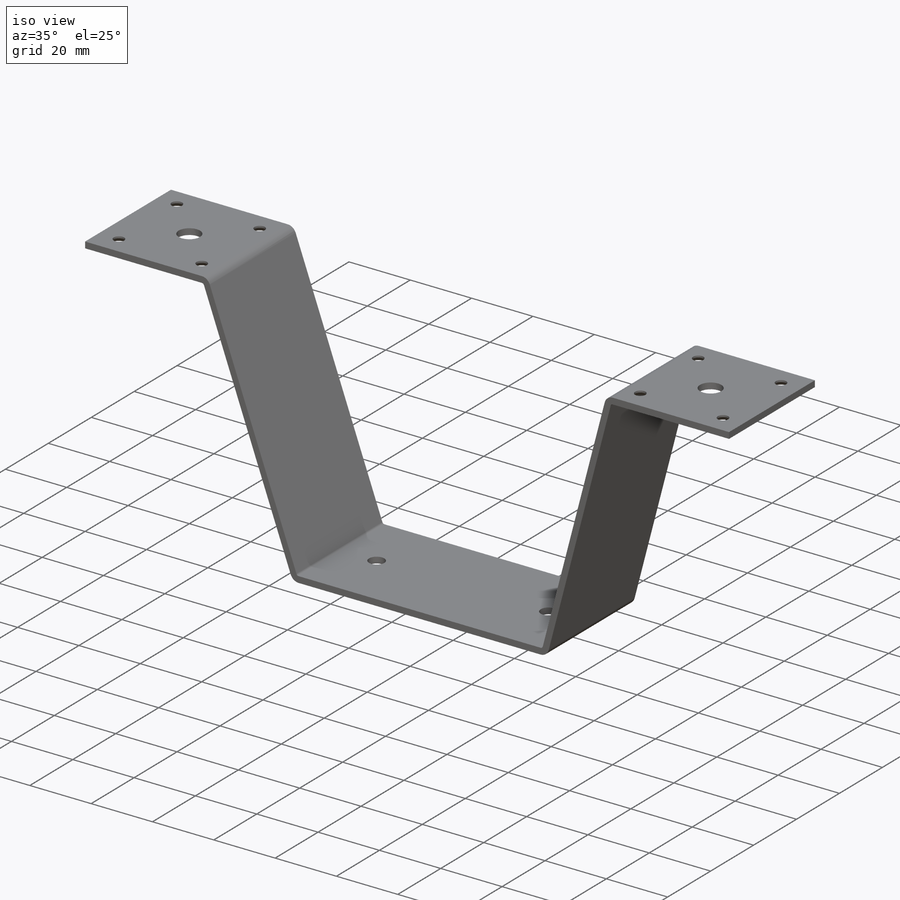
[diagram: iso view]
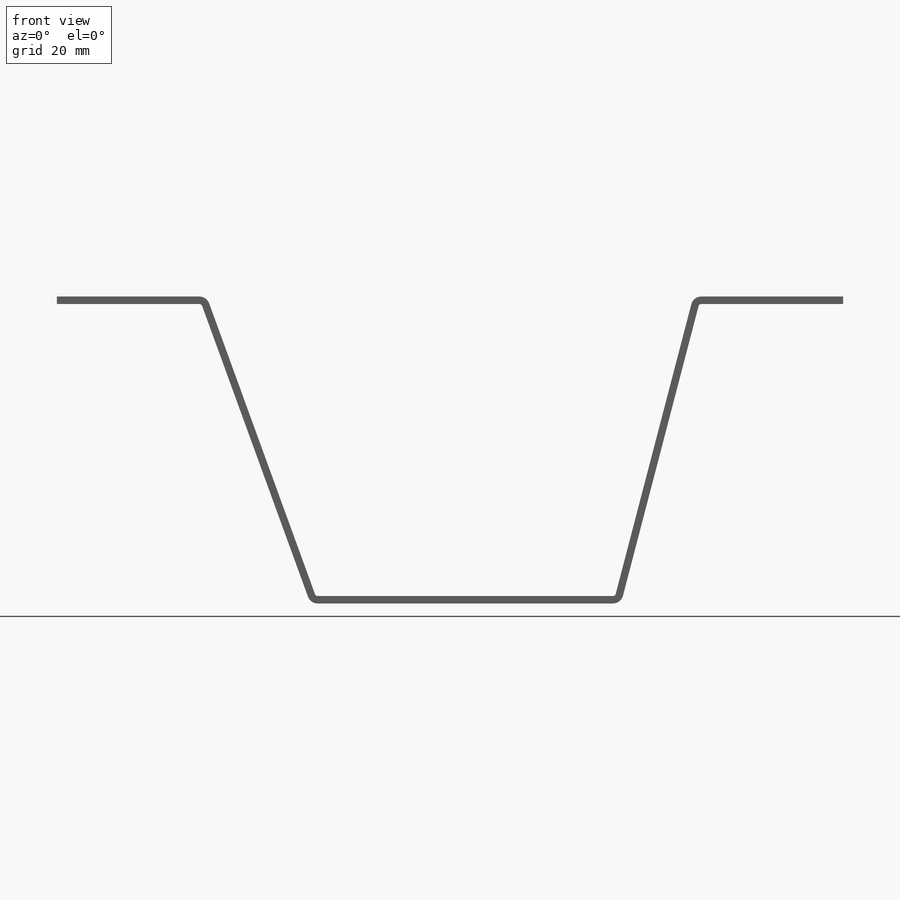
[diagram: front view]
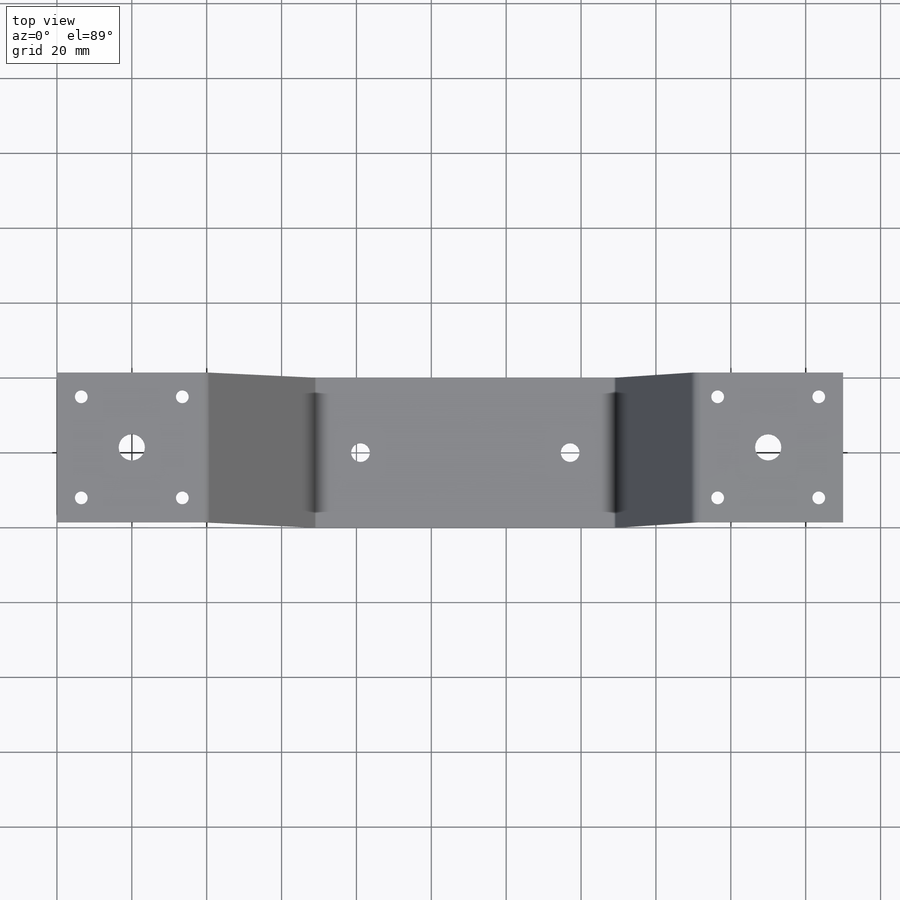
[diagram: top view]
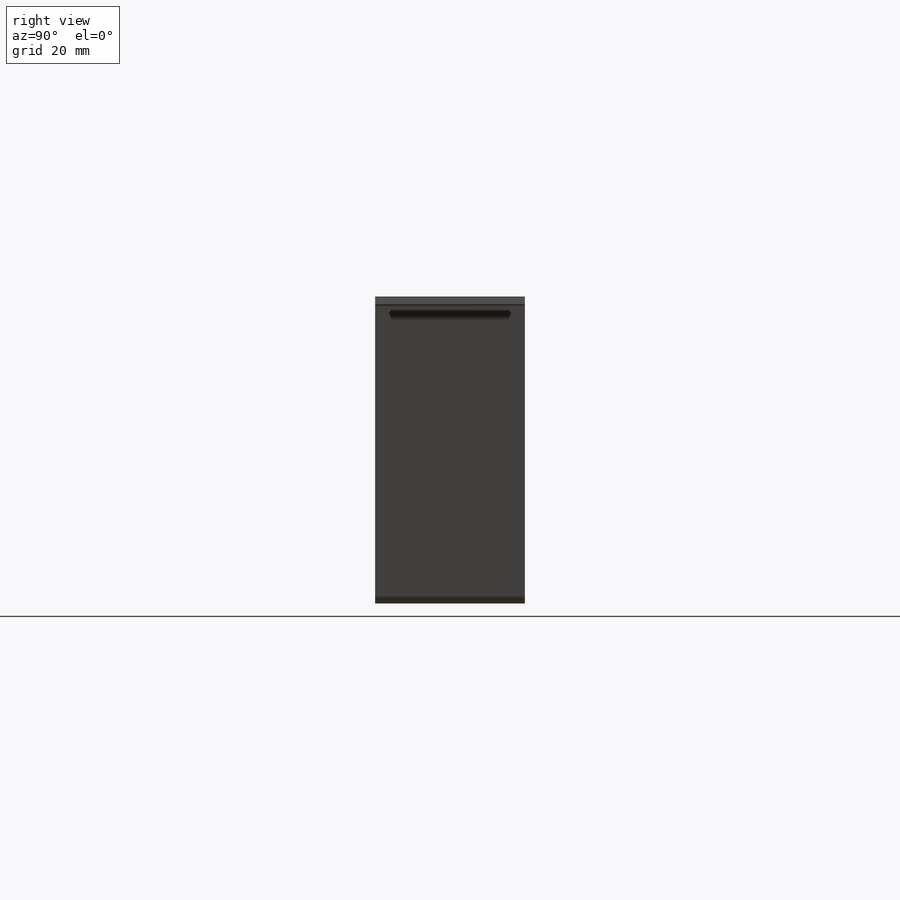
[diagram: right view]
SOLIDWORKS PART (.sldprt)
format: sldprt  version: not decoded by parser v0  size: 652,800 bytes
history: native  units: mm
features: sketch x16, sheet_metal_op x8, hole x4, plane x3, material x1, cut_extrude x1, extrude x1 + 20 further entries (+10 scaffold rows collapsed)
feature tree (64):
  scaffold x10  (default folders/planes/origin — collapsed)
  material  "材質 <未指定>"
  plane  "前基準面"
  plane  "上基準面"
  plane  "右基準面"
  sketch  "草圖1"  dims[c1.D1=40.0mm c1.D2=40.0mm c1.D3=80.0mm c1.D4=130.0mm c1.D5=40.0mm c2.D5=~100.065656deg c3.D5=~1919.862177mm c3.D6=80.0mm c3.D1=0.7366mm c3.D2=0.5 c3.D3=0.0deg c4.D6=~28.64789deg]
  sheet_metal_op  "基材-凸緣1"
  sheet_metal_op  "基材彎折2"
  sheet_metal_op  "基材彎折3"
  sheet_metal_op  "基材彎折4"
  sketch  "草圖6"  dims[D1=5.0mm D2=28.0mm D3=20.0mm]
  cut_extrude  "除料-伸長1"  [1 undecoded]
  hole  "M3 高錐坑頭螺釘的錐孔1"  [1 undecoded]
  sketch  "草圖14"  dims[D1=6.5mm D2=6.5mm D3=27.0mm D4=85.0mm]
  sketch  "草圖13"  dims[hole-wizard template sketch: 29 standard entries collapsed; hole parameters kept: c4.鑽孔直徑=3.4mm c4.鑽孔深度=2.0mm c4.近端錐孔直徑=6.3mm c4.近端錐孔角度=~1570.796327mm c4.導頭角度=~2059.488517mm]
  extrude  "Ø7.0 (7) 直徑孔1"  [1 undecoded]
  sketch  "草圖17"  dims[D1=20.0mm D2=20.0mm D3=20.0mm D4=20.0mm]
  sketch  "草圖16"  dims[hole-wizard template sketch: 34 standard entries collapsed; hole parameters kept: c5.鑽孔直徑=7.0mm c5.鑽孔深度=2.0mm c5.導頭角度=~2059.488517mm]
  sketch  "彎折-線1"
  sketch  "邊界方塊1"
  sheet_metal_op  "鈑金1"
  "平板-型式1"
  sketch  "彎折-線2"
  sketch  "邊界方塊2"
  "草圖變形1"
  "平板-<基材彎折2>1"
  "平板-<基材彎折3>1"
  "平板-<基材彎折4>1"
  hole  "鈑金2"  Diameter=0.7366mm
  sheet_metal_op  "平板-型式1"
  sketch  "彎折-線2"
  sketch  "邊界方塊2"
  "草圖變形1"
  "平板-<基材彎折1>1"
  "平板-<基材彎折2>1"
  "平板-<基材彎折3>1"
  "平板-<基材彎折4>1"
  hole  "鈑金6"  Diameter=0.7366mm
  sheet_metal_op  "平板-型式1"
  sketch  "彎折-線2"
  sketch  "邊界方塊2"
  "草圖變形1"
  "平板-<基材彎折1>1"
  "平板-<基材彎折2>1"
  "平板-<基材彎折3>1"
  "平板-<基材彎折4>1"
  hole  "鈑金7"  Diameter=0.7366mm
  sheet_metal_op  "平板-型式1"
  sketch  "彎折-線2"
  sketch  "邊界方塊2"
  "平板-<基材彎折1>1"
  "平板-<基材彎折2>1"
  "平板-<基材彎折3>1"
  "平板-<基材彎折4>1"
  "草圖變形1"
decode coverage: 9 of 30 modeling features carry decoded parameters; 20 rows unclassified (native names shown)
note: ~ marks probable driven/reference dimensions
note: 3 parameter values undecoded
summary: no parameter record found for 3 features
note: suppression state not decoded; provenance and decode notes live in map.json
